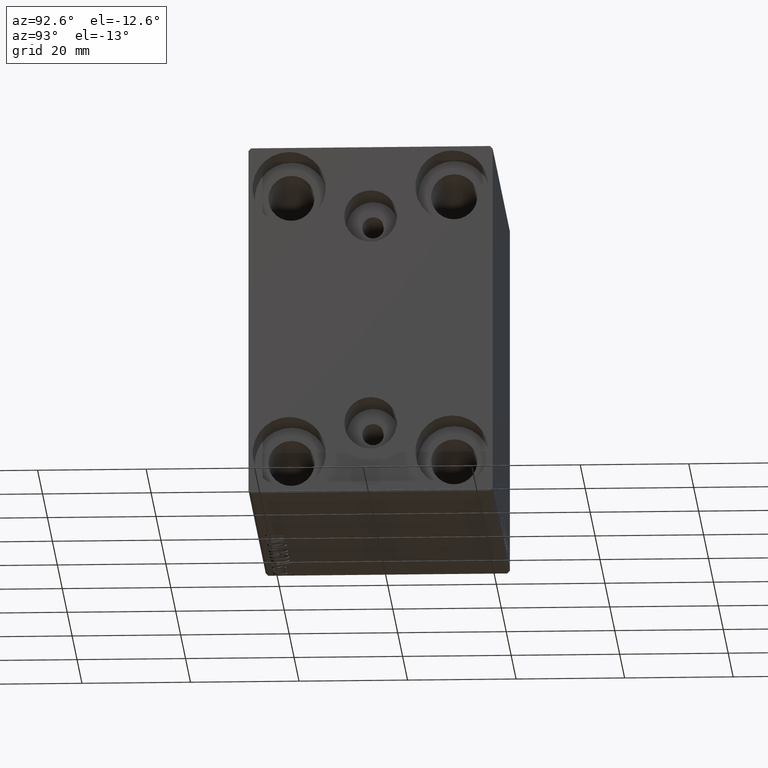
[diagram: clean part render]
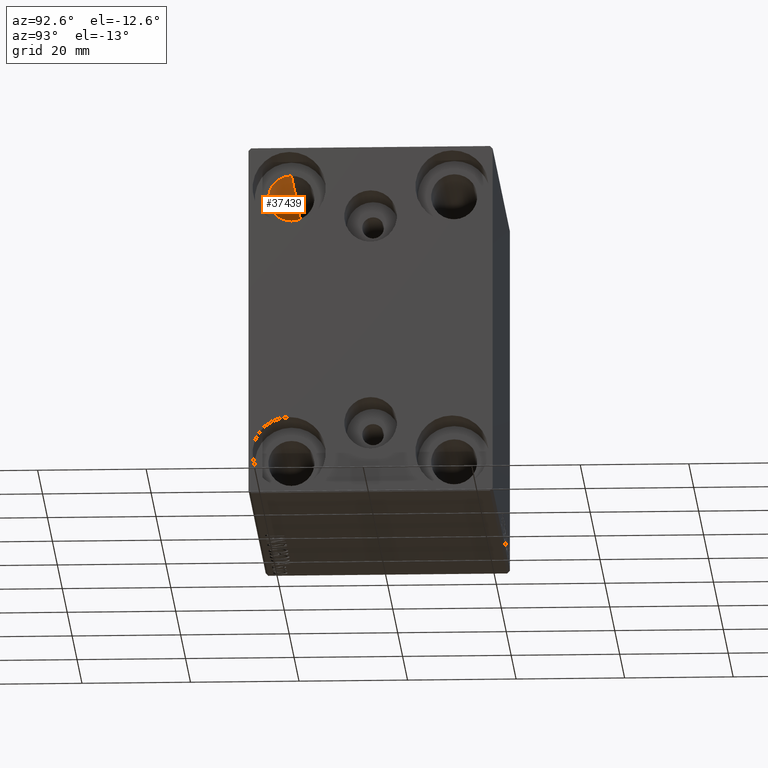
[diagram: same view with one face highlighted and labeled with its STEP entity id]
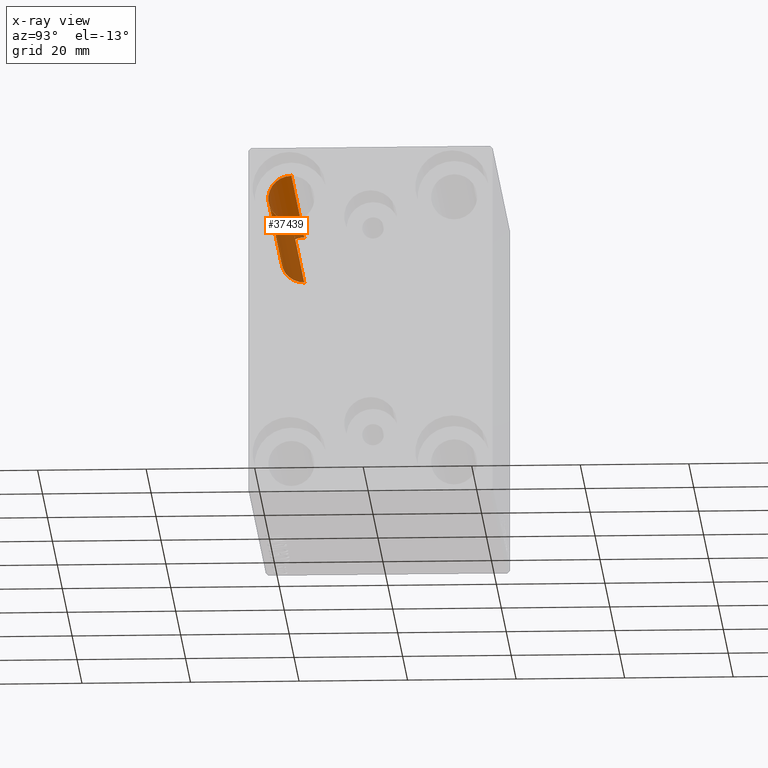
[diagram: x-ray of the same camera — body ghosted, the highlighted face saturated]
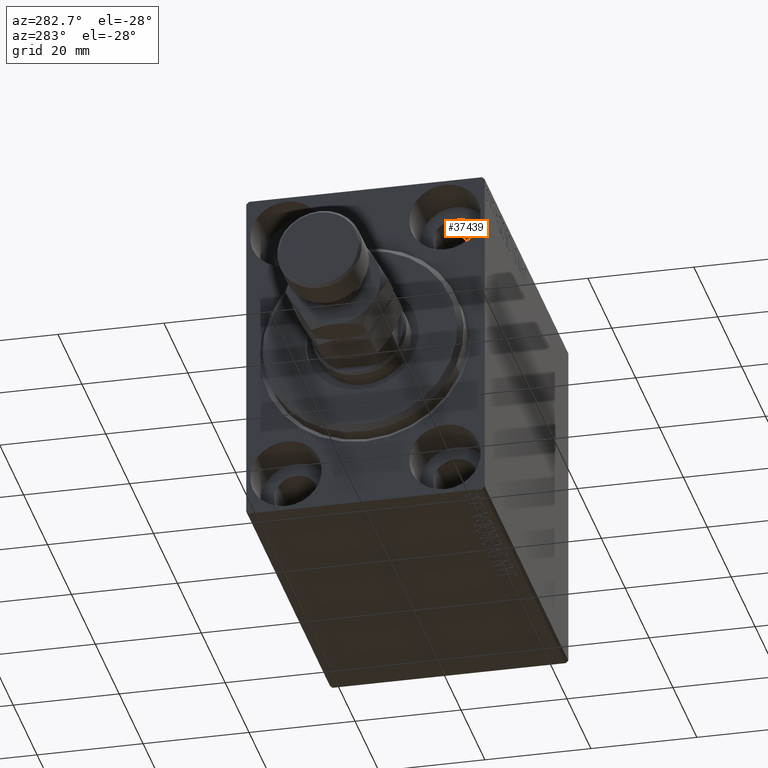
[diagram: same view with one face highlighted and labeled with its STEP entity id]
A machine part, auxiliary view. The second image highlights one B-rep face of the part: STEP entity #37439.
The next image is the same camera in x-ray: the body ghosted, the highlighted face saturated — about 50% of this face is hidden behind the body in this view.
A second angle (auxiliary view) of the same face is appended — the face is thin or edge-on in the first view.
In plain terms, the highlighted cylindrical surface (edge-blend (fillet) strip) has radius 4.25 mm, axis along (-1, -0, -0).
Its self-contained STEP definition (entity closure, byte-faithful):
#942 = CARTESIAN_POINT ( 'NONE',  ( 61.00000000000000711, -14.99999999999999645, 29.25000000000000000 ) ) ;
#2533 = AXIS2_PLACEMENT_3D ( 'NONE', #30111, #22753, #37251 ) ;
#3824 = EDGE_CURVE ( 'NONE', #24254, #30885, #19402, .T. ) ;
#4618 = VERTEX_POINT ( 'NONE', #942 ) ;
#8833 = EDGE_CURVE ( 'NONE', #20736, #4618, #28950, .T. ) ;
#9587 = DIRECTION ( 'NONE',  ( 0.000000000000000000, 0.000000000000000000, 1.000000000000000000 ) ) ;
#11360 = EDGE_CURVE ( 'NONE', #20736, #24254, #40569, .T. ) ;
#13157 = CARTESIAN_POINT ( 'NONE',  ( 70.00000000000000000, -14.99999999999999645, 29.25000000000000000 ) ) ;
#13463 = EDGE_LOOP ( 'NONE', ( #25723, #31726, #24883, #32098 ) ) ;
#17203 = AXIS2_PLACEMENT_3D ( 'NONE', #44280, #41077, #9587 ) ;
#19402 = CIRCLE ( 'NONE', #17203, 4.249999999999996447 ) ;
#20105 = CARTESIAN_POINT ( 'NONE',  ( 70.00000000000000000, -14.99999999999999645, 20.75000000000000355 ) ) ;
#20736 = VERTEX_POINT ( 'NONE', #24735 ) ;
#20737 = DIRECTION ( 'NONE',  ( -1.000000000000000000, -0.000000000000000000, -0.000000000000000000 ) ) ;
#21312 = VECTOR ( 'NONE', #33876, 1000.000000000000000 ) ;
#21657 = CARTESIAN_POINT ( 'NONE',  ( 70.00000000000000000, -14.99999999999999645, 25.00000000000000000 ) ) ;
#21897 = EDGE_CURVE ( 'NONE', #4618, #30885, #40752, .T. ) ;
#22753 = DIRECTION ( 'NONE',  ( -1.000000000000000000, -0.000000000000000000, -0.000000000000000000 ) ) ;
#23315 = DIRECTION ( 'NONE',  ( -1.000000000000000000, -0.000000000000000000, -0.000000000000000000 ) ) ;
#24254 = VERTEX_POINT ( 'NONE', #39302 ) ;
#24735 = CARTESIAN_POINT ( 'NONE',  ( 61.00000000000000711, -14.99999999999999645, 20.75000000000000355 ) ) ;
#24883 = ORIENTED_EDGE ( 'NONE', *, *, #3824, .T. ) ;
#25326 = CYLINDRICAL_SURFACE ( 'NONE', #26899, 4.249999999999996447 ) ;
#25723 = ORIENTED_EDGE ( 'NONE', *, *, #8833, .F. ) ;
#26899 = AXIS2_PLACEMENT_3D ( 'NONE', #21657, #20737, #34779 ) ;
#28950 = CIRCLE ( 'NONE', #2533, 4.249999999999996447 ) ;
#30111 = CARTESIAN_POINT ( 'NONE',  ( 61.00000000000000711, -14.99999999999999645, 25.00000000000000000 ) ) ;
#30885 = VERTEX_POINT ( 'NONE', #41012 ) ;
#31726 = ORIENTED_EDGE ( 'NONE', *, *, #11360, .T. ) ;
#32098 = ORIENTED_EDGE ( 'NONE', *, *, #21897, .F. ) ;
#33876 = DIRECTION ( 'NONE',  ( -1.000000000000000000, -0.000000000000000000, -0.000000000000000000 ) ) ;
#34779 = DIRECTION ( 'NONE',  ( 0.000000000000000000, 0.000000000000000000, 1.000000000000000000 ) ) ;
#37251 = DIRECTION ( 'NONE',  ( 0.000000000000000000, 0.000000000000000000, -1.000000000000000000 ) ) ;
#37439 = ADVANCED_FACE ( 'NONE', ( #39144 ), #25326, .F. ) ;
#38583 = VECTOR ( 'NONE', #23315, 1000.000000000000000 ) ;
#39144 = FACE_OUTER_BOUND ( 'NONE', #13463, .T. ) ;
#39302 = CARTESIAN_POINT ( 'NONE',  ( 9.000000000000001776, -14.99999999999999645, 20.75000000000000355 ) ) ;
#40569 = LINE ( 'NONE', #20105, #38583 ) ;
#40752 = LINE ( 'NONE', #13157, #21312 ) ;
#41012 = CARTESIAN_POINT ( 'NONE',  ( 9.000000000000001776, -14.99999999999999645, 29.25000000000000000 ) ) ;
#41077 = DIRECTION ( 'NONE',  ( -1.000000000000000000, 0.000000000000000000, 0.000000000000000000 ) ) ;
#44280 = CARTESIAN_POINT ( 'NONE',  ( 9.000000000000001776, -14.99999999999999645, 25.00000000000000000 ) ) ;